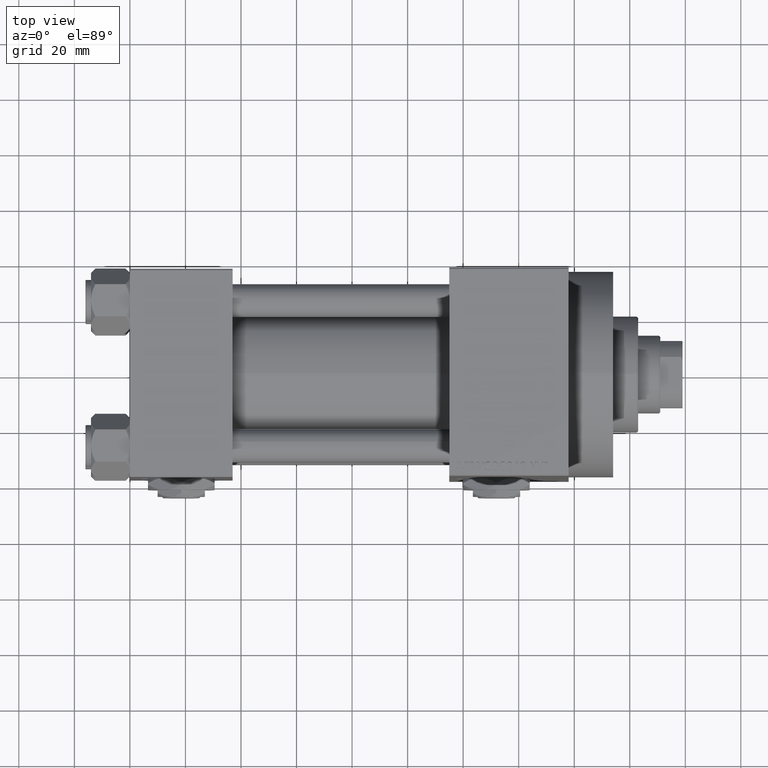
[diagram: clean part render]
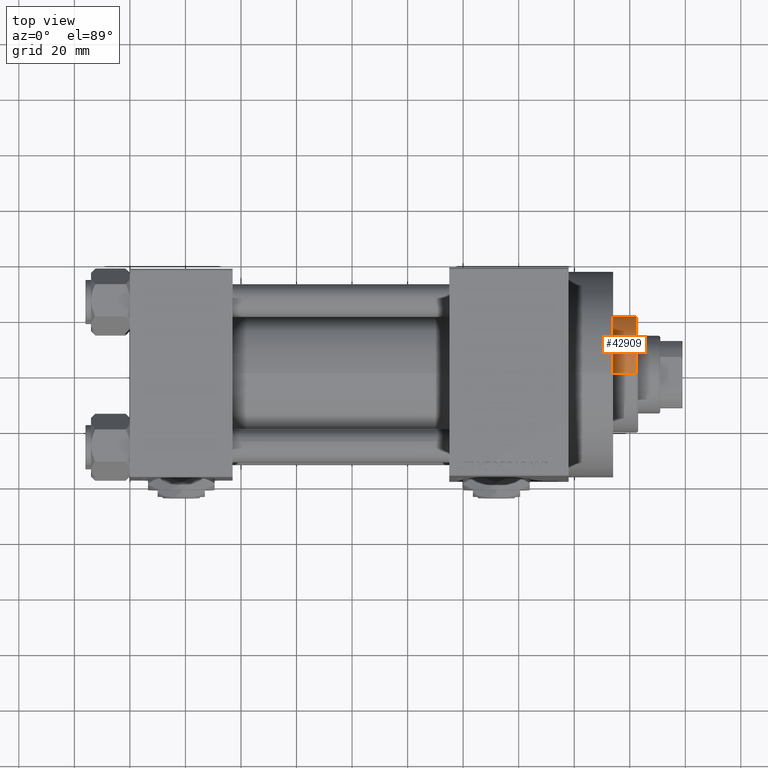
[diagram: same view with one face highlighted and labeled with its STEP entity id]
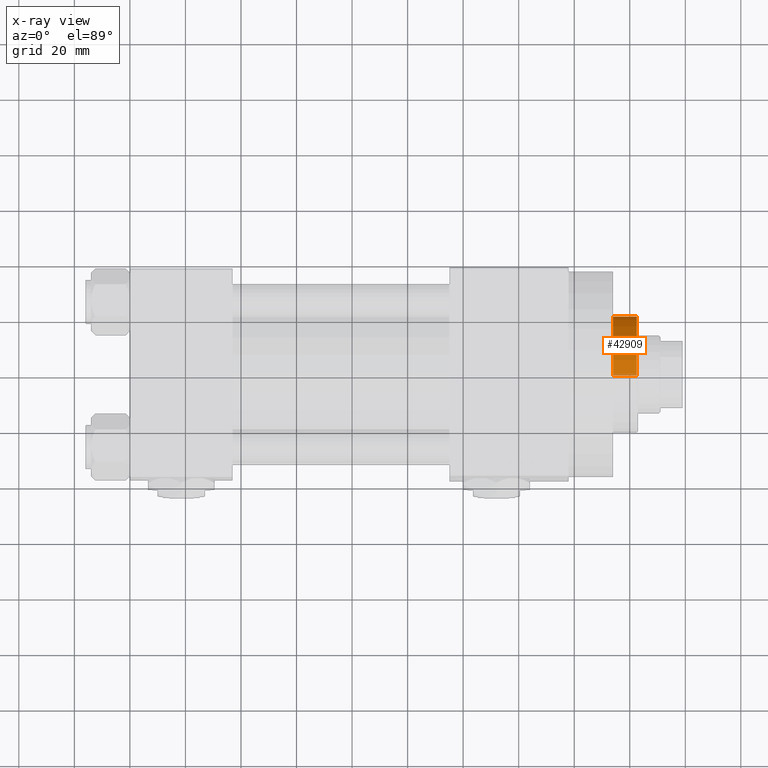
[diagram: x-ray of the same camera — body ghosted, the highlighted face saturated]
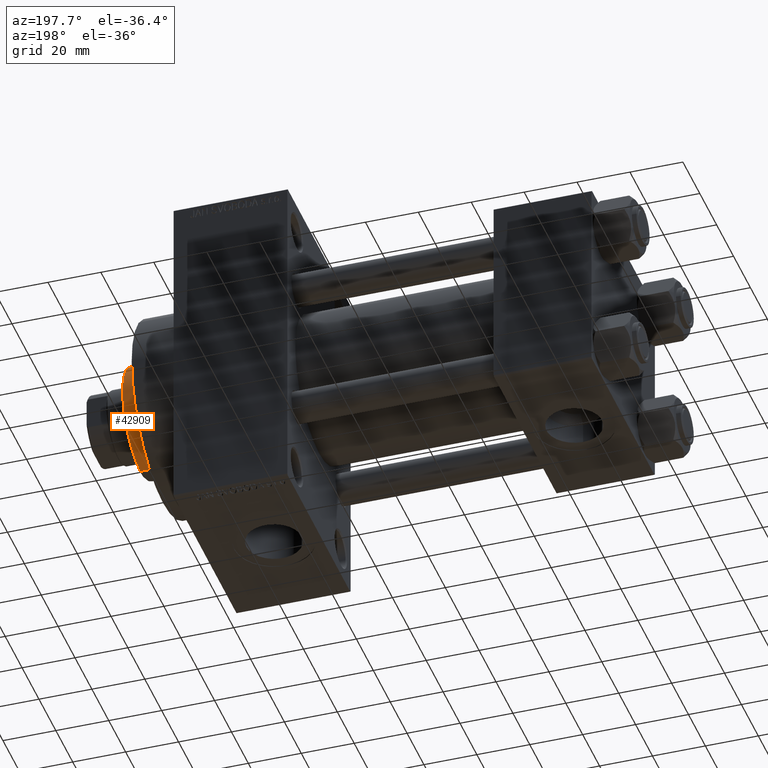
[diagram: same view with one face highlighted and labeled with its STEP entity id]
A machine part, top view. The second image highlights one B-rep face of the part: STEP entity #42909.
The next image is the same camera in x-ray: the body ghosted, the highlighted face saturated — about 3% of this face is hidden behind the body in this view.
A second angle (auxiliary view) of the same face is appended — the face is thin or edge-on in the first view.
In plain terms, the highlighted cylindrical surface (partial cylindrical patch) has radius 21 mm, axis along (-1, 0, 0).
Its self-contained STEP definition (entity closure, byte-faithful):
#2231 = AXIS2_PLACEMENT_3D ( 'NONE', #5674, #9428, #20935 ) ;
#2399 = VECTOR ( 'NONE', #15811, 1000.000000000000000 ) ;
#2859 = EDGE_CURVE ( 'NONE', #18621, #32245, #3218, .T. ) ;
#3218 = CIRCLE ( 'NONE', #11186, 21.00000000000000000 ) ;
#3889 = VERTEX_POINT ( 'NONE', #36405 ) ;
#5674 = CARTESIAN_POINT ( 'NONE',  ( 0.000000000000000000, 0.000000000000000000, 52.25999999999999801 ) ) ;
#7480 = CIRCLE ( 'NONE', #35460, 21.00000000000000000 ) ;
#9428 = DIRECTION ( 'NONE',  ( -0.000000000000000000, -0.000000000000000000, -1.000000000000000000 ) ) ;
#11119 = VECTOR ( 'NONE', #46151, 1000.000000000000000 ) ;
#11186 = AXIS2_PLACEMENT_3D ( 'NONE', #32214, #40220, #47717 ) ;
#12613 = ORIENTED_EDGE ( 'NONE', *, *, #14138, .T. ) ;
#14138 = EDGE_CURVE ( 'NONE', #3889, #35502, #7480, .T. ) ;
#14432 = ORIENTED_EDGE ( 'NONE', *, *, #2859, .T. ) ;
#15811 = DIRECTION ( 'NONE',  ( -0.000000000000000000, -0.000000000000000000, -1.000000000000000000 ) ) ;
#16282 = CARTESIAN_POINT ( 'NONE',  ( 21.00000000000000000, 2.571758278209441661E-15, 43.25999999999999801 ) ) ;
#16953 = FACE_OUTER_BOUND ( 'NONE', #20531, .T. ) ;
#17241 = DIRECTION ( 'NONE',  ( 0.000000000000000000, 0.000000000000000000, -1.000000000000000000 ) ) ;
#18621 = VERTEX_POINT ( 'NONE', #25497 ) ;
#18798 = ORIENTED_EDGE ( 'NONE', *, *, #19212, .F. ) ;
#19212 = EDGE_CURVE ( 'NONE', #3889, #32245, #49400, .T. ) ;
#20531 = EDGE_LOOP ( 'NONE', ( #18798, #12613, #38625, #14432 ) ) ;
#20935 = DIRECTION ( 'NONE',  ( -1.000000000000000000, 0.000000000000000000, 0.000000000000000000 ) ) ;
#21458 = CARTESIAN_POINT ( 'NONE',  ( 0.000000000000000000, 0.000000000000000000, 51.75999999999999801 ) ) ;
#21676 = EDGE_CURVE ( 'NONE', #35502, #18621, #26322, .T. ) ;
#22369 = CARTESIAN_POINT ( 'NONE',  ( 21.00000000000000000, 2.571758278209441661E-15, 52.25999999999999801 ) ) ;
#24410 = CARTESIAN_POINT ( 'NONE',  ( -21.00000000000000000, 0.000000000000000000, 51.75999999999999801 ) ) ;
#25497 = CARTESIAN_POINT ( 'NONE',  ( -21.00000000000000000, 0.000000000000000000, 43.25999999999999801 ) ) ;
#26322 = LINE ( 'NONE', #34838, #2399 ) ;
#28992 = DIRECTION ( 'NONE',  ( 1.000000000000000000, 0.000000000000000000, 0.000000000000000000 ) ) ;
#32214 = CARTESIAN_POINT ( 'NONE',  ( 0.000000000000000000, 0.000000000000000000, 43.25999999999999801 ) ) ;
#32245 = VERTEX_POINT ( 'NONE', #16282 ) ;
#34838 = CARTESIAN_POINT ( 'NONE',  ( -21.00000000000000000, 0.000000000000000000, 52.25999999999999801 ) ) ;
#35460 = AXIS2_PLACEMENT_3D ( 'NONE', #21458, #17241, #28992 ) ;
#35502 = VERTEX_POINT ( 'NONE', #24410 ) ;
#36405 = CARTESIAN_POINT ( 'NONE',  ( 21.00000000000000000, 2.571758278209441661E-15, 51.75999999999999801 ) ) ;
#38625 = ORIENTED_EDGE ( 'NONE', *, *, #21676, .T. ) ;
#40220 = DIRECTION ( 'NONE',  ( 0.000000000000000000, 0.000000000000000000, 1.000000000000000000 ) ) ;
#42909 = ADVANCED_FACE ( 'NONE', ( #16953 ), #43721, .T. ) ;
#43721 = CYLINDRICAL_SURFACE ( 'NONE', #2231, 21.00000000000000000 ) ;
#46151 = DIRECTION ( 'NONE',  ( -0.000000000000000000, -0.000000000000000000, -1.000000000000000000 ) ) ;
#47717 = DIRECTION ( 'NONE',  ( 1.000000000000000000, 0.000000000000000000, 0.000000000000000000 ) ) ;
#49400 = LINE ( 'NONE', #22369, #11119 ) ;